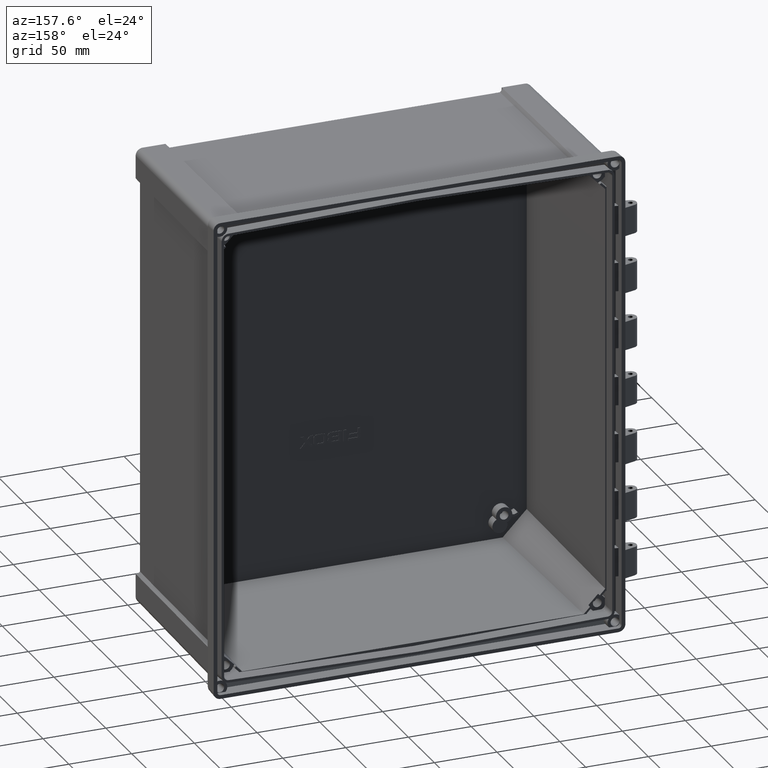
[diagram: clean part render]
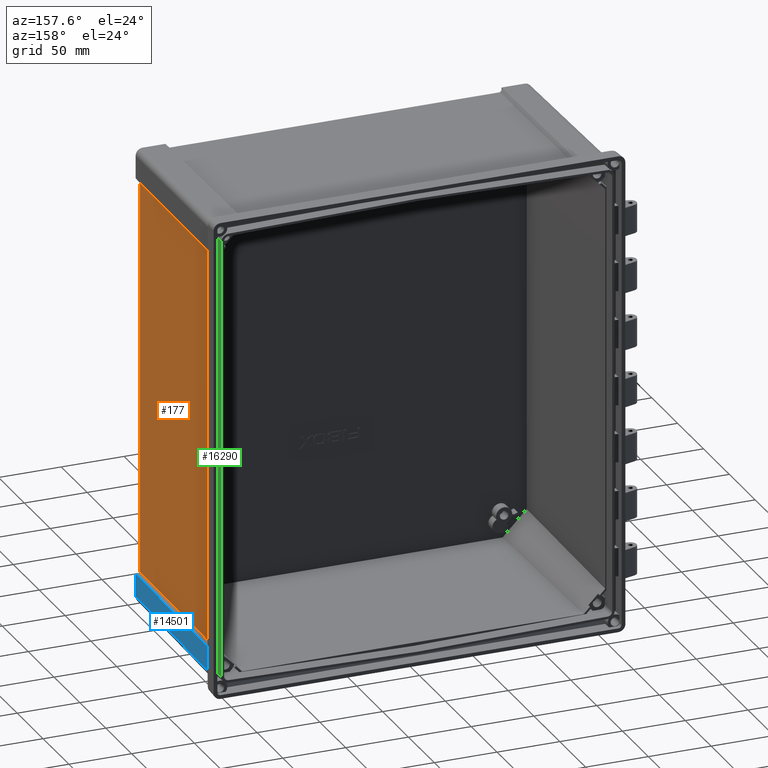
[diagram: same view with three faces highlighted in distinct colors, each labeled with its STEP entity id]
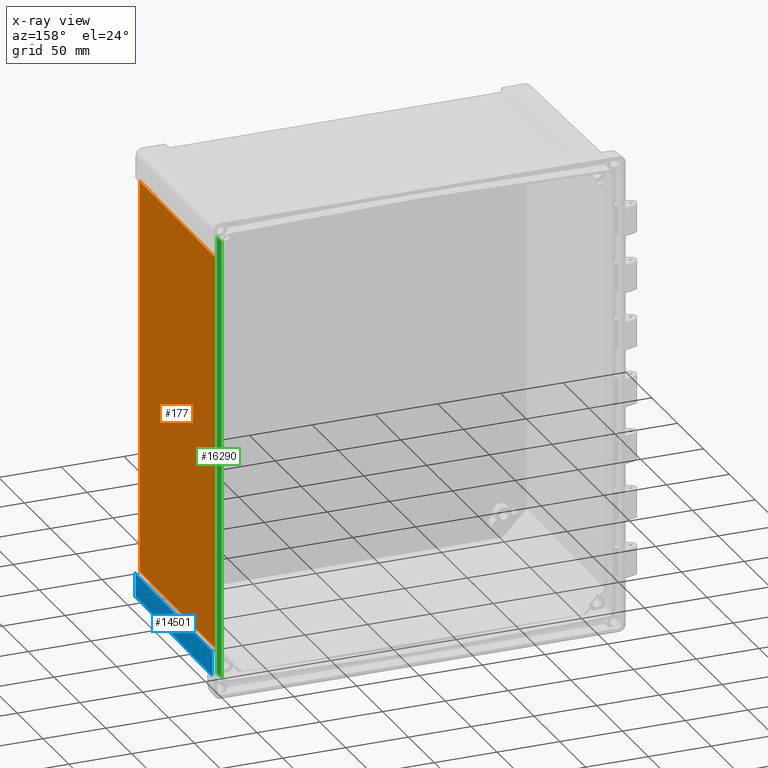
[diagram: x-ray of the same camera — body ghosted, the three highlighted faces saturated]
A machine part, auxiliary view with three faces highlighted in distinct colors.
The next image is the same camera in x-ray (body ghosted, the three faces saturated) — at least one of them is partly hidden behind the body in this view.
Their STEP definitions:

[orange] entity #177 — the highlighted planar face has unit normal (1, -0.0087, -0).
#177 = ADVANCED_FACE ( 'NONE', ( #1636 ), #2775, .T. ) ;
#577 = LINE ( 'NONE', #4968, #10868 ) ;
#586 = AXIS2_PLACEMENT_3D ( 'NONE', #18888, #10669, #5870 ) ;
#1310 = ORIENTED_EDGE ( 'NONE', *, *, #3884, .T. ) ;
#1636 = FACE_OUTER_BOUND ( 'NONE', #16570, .T. ) ;
#2371 = ORIENTED_EDGE ( 'NONE', *, *, #9360, .T. ) ;
#2763 = VECTOR ( 'NONE', #16458, 999.9999999999998900 ) ;
#2775 = PLANE ( 'NONE',  #586 ) ;
#2934 = VECTOR ( 'NONE', #9961, 1000.000000000000000 ) ;
#3884 = EDGE_CURVE ( 'NONE', #4318, #7385, #13097, .T. ) ;
#4167 = VECTOR ( 'NONE', #5694, 999.9999999999998900 ) ;
#4318 = VERTEX_POINT ( 'NONE', #8253 ) ;
#4514 = ORIENTED_EDGE ( 'NONE', *, *, #16239, .T. ) ;
#4968 = CARTESIAN_POINT ( 'NONE',  ( 156.4582163448737300, -15.51465397274029300, -182.5000000000000000 ) ) ;
#5183 = CARTESIAN_POINT ( 'NONE',  ( 4520.027724690820800, 500000.0250526138700, 616.0387640821163600 ) ) ;
#5361 = ORIENTED_EDGE ( 'NONE', *, *, #15102, .F. ) ;
#5694 = DIRECTION ( 'NONE',  ( 0.008726531827788399500, 0.9999615024563482900, -0.0009171954542839643900 ) ) ;
#5870 = DIRECTION ( 'NONE',  ( 0.008726535498377261900, 0.9999619230641712000, 0.0000000000000000000 ) ) ;
#7385 = VERTEX_POINT ( 'NONE', #14695 ) ;
#8253 = CARTESIAN_POINT ( 'NONE',  ( 156.4582163448737900, -15.51465397274028400, 157.4091278776343500 ) ) ;
#9360 = EDGE_CURVE ( 'NONE', #11297, #4318, #577, .T. ) ;
#9456 = CARTESIAN_POINT ( 'NONE',  ( 155.1624043612282800, -164.0000000000000000, -157.2713855089515400 ) ) ;
#9961 = DIRECTION ( 'NONE',  ( 1.529384414621575700E-016, 0.0000000000000000000, 1.000000000000000000 ) ) ;
#10669 = DIRECTION ( 'NONE',  ( 0.9999619230641713100, -0.008726535498377263600, -1.529326180349363200E-016 ) ) ;
#10868 = VECTOR ( 'NONE', #19619, 1000.000000000000000 ) ;
#11297 = VERTEX_POINT ( 'NONE', #20497 ) ;
#12066 = CARTESIAN_POINT ( 'NONE',  ( 4520.027723359377900, 500000.0249000454800, -616.0372169012649700 ) ) ;
#13097 = LINE ( 'NONE', #5183, #2763 ) ;
#13189 = CARTESIAN_POINT ( 'NONE',  ( 155.1624043612282800, -164.0000000000000000, -182.5000000000000000 ) ) ;
#14695 = CARTESIAN_POINT ( 'NONE',  ( 155.1624043612283400, -164.0000000000000000, 157.2729325500451400 ) ) ;
#15102 = EDGE_CURVE ( 'NONE', #15960, #7385, #16529, .T. ) ;
#15960 = VERTEX_POINT ( 'NONE', #9456 ) ;
#16239 = EDGE_CURVE ( 'NONE', #15960, #11297, #17012, .T. ) ;
#16458 = DIRECTION ( 'NONE',  ( -0.008726531827788399500, -0.9999615024563482900, -0.0009171954542835999800 ) ) ;
#16529 = LINE ( 'NONE', #13189, #2934 ) ;
#16570 = EDGE_LOOP ( 'NONE', ( #1310, #5361, #4514, #2371 ) ) ;
#17012 = LINE ( 'NONE', #12066, #4167 ) ;
#18888 = CARTESIAN_POINT ( 'NONE',  ( 156.4582163448737300, -15.51465397274029300, -182.5000000000000000 ) ) ;
#19619 = DIRECTION ( 'NONE',  ( 1.532226623010618200E-016, 3.256848226864016900E-017, 1.000000000000000000 ) ) ;
#20497 = CARTESIAN_POINT ( 'NONE',  ( 156.4582163448737300, -15.51465397274029500, -157.4075808365416000 ) ) ;

[blue] entity #14501 — the highlighted planar face has unit normal (1, -0.0087, -0).
#901 = VECTOR ( 'NONE', #16110, 1000.000000000000000 ) ;
#1118 = VERTEX_POINT ( 'NONE', #3966 ) ;
#2817 = VERTEX_POINT ( 'NONE', #6312 ) ;
#3138 = DIRECTION ( 'NONE',  ( 0.9999619230641713100, -0.008726535498373953800, -5.550903753671456900E-015 ) ) ;
#3825 = CARTESIAN_POINT ( 'NONE',  ( 157.7846253229202200, -166.0000000000000000, -179.3020790585016200 ) ) ;
#3966 = CARTESIAN_POINT ( 'NONE',  ( 157.7846253229202200, -166.0000000000000000, -177.7848347460671600 ) ) ;
#4154 = AXIS2_PLACEMENT_3D ( 'NONE', #14546, #3138, #11384 ) ;
#4770 = LINE ( 'NONE', #5246, #20403 ) ;
#4857 = CARTESIAN_POINT ( 'NONE',  ( 157.7846253229203300, -166.0000000000000000, -159.4892400264092200 ) ) ;
#5246 = CARTESIAN_POINT ( 'NONE',  ( 157.4574272763685200, -203.4931824793186800, -159.4373002503094500 ) ) ;
#5724 = CARTESIAN_POINT ( 'NONE',  ( 157.8020790585018500, -164.0000000000000000, -159.4735246123035200 ) ) ;
#5921 = LINE ( 'NONE', #14236, #15015 ) ;
#6161 = LINE ( 'NONE', #9919, #901 ) ;
#6212 = FACE_OUTER_BOUND ( 'NONE', #19598, .T. ) ;
#6312 = CARTESIAN_POINT ( 'NONE',  ( 159.1027966142823700, -14.95253108361441500, -159.6102355363004800 ) ) ;
#6520 = PLANE ( 'NONE',  #4154 ) ;
#6816 = LINE ( 'NONE', #3825, #16138 ) ;
#6833 = ORIENTED_EDGE ( 'NONE', *, *, #9880, .T. ) ;
#8699 = DIRECTION ( 'NONE',  ( 0.008726531827785086200, 0.9999615024563482900, -0.0009171954542809246100 ) ) ;
#9085 = ORIENTED_EDGE ( 'NONE', *, *, #10259, .F. ) ;
#9880 = EDGE_CURVE ( 'NONE', #12329, #1118, #6816, .T. ) ;
#9919 = CARTESIAN_POINT ( 'NONE',  ( 159.1027966142822000, -14.95253108361445800, -191.8729938033533000 ) ) ;
#10259 = EDGE_CURVE ( 'NONE', #14783, #2817, #4770, .T. ) ;
#10875 = VECTOR ( 'NONE', #17235, 1000.000000000000000 ) ;
#11112 = VERTEX_POINT ( 'NONE', #13888 ) ;
#11384 = DIRECTION ( 'NONE',  ( 0.008726535498373953800, 0.9999619230641713100, 0.0000000000000000000 ) ) ;
#11812 = ORIENTED_EDGE ( 'NONE', *, *, #16523, .F. ) ;
#12329 = VERTEX_POINT ( 'NONE', #4857 ) ;
#13888 = CARTESIAN_POINT ( 'NONE',  ( 159.1027966142822800, -14.95253108361444200, -179.1030060374292000 ) ) ;
#14236 = CARTESIAN_POINT ( 'NONE',  ( 159.1120809855829900, -13.88864750896570800, -179.1122904087299000 ) ) ;
#14482 = ORIENTED_EDGE ( 'NONE', *, *, #15836, .T. ) ;
#14501 = ADVANCED_FACE ( 'NONE', ( #6212 ), #6520, .T. ) ;
#14546 = CARTESIAN_POINT ( 'NONE',  ( 159.1111092271154900, -14.00000000000000200, -191.8729938033533000 ) ) ;
#14783 = VERTEX_POINT ( 'NONE', #5724 ) ;
#15015 = VECTOR ( 'NONE', #18938, 1000.000000000000100 ) ;
#15836 = EDGE_CURVE ( 'NONE', #1118, #11112, #5921, .T. ) ;
#16110 = DIRECTION ( 'NONE',  ( -5.561431316896711000E-015, -1.182118718683531600E-015, -1.000000000000000000 ) ) ;
#16138 = VECTOR ( 'NONE', #19802, 1000.000000000000000 ) ;
#16523 = EDGE_CURVE ( 'NONE', #2817, #11112, #6161, .T. ) ;
#17235 = DIRECTION ( 'NONE',  ( 0.008726266127678031200, 0.9999310562397356600, 0.007857165312980560900 ) ) ;
#18352 = EDGE_CURVE ( 'NONE', #12329, #14783, #18919, .T. ) ;
#18919 = LINE ( 'NONE', #19116, #10875 ) ;
#18938 = DIRECTION ( 'NONE',  ( 0.008726203243944187900, 0.9999238504775704900, -0.008726203243944236400 ) ) ;
#19116 = CARTESIAN_POINT ( 'NONE',  ( 157.8013531687958800, -164.0831787215519200, -159.4741782063304900 ) ) ;
#19598 = EDGE_LOOP ( 'NONE', ( #6833, #14482, #11812, #9085, #19747 ) ) ;
#19747 = ORIENTED_EDGE ( 'NONE', *, *, #18352, .F. ) ;
#19802 = DIRECTION ( 'NONE',  ( -5.824015820661215600E-015, 0.0000000000000000000, -1.000000000000000000 ) ) ;
#20403 = VECTOR ( 'NONE', #8699, 999.9999999999998900 ) ;

[green] entity #16290 — the highlighted planar face has unit normal (0.9994, 0.0349, 0).
#440 = DIRECTION ( 'NONE',  ( 0.03487899055459543100, -0.9988036077738137200, 0.03427548855823894800 ) ) ;
#1762 = LINE ( 'NONE', #9415, #10814 ) ;
#1977 = VERTEX_POINT ( 'NONE', #15657 ) ;
#2107 = DIRECTION ( 'NONE',  ( 1.539166142350817000E-016, 3.271598630569969400E-017, -1.000000000000000000 ) ) ;
#2566 = EDGE_CURVE ( 'NONE', #8535, #1977, #6600, .T. ) ;
#2669 = VECTOR ( 'NONE', #440, 1000.000000000000100 ) ;
#2919 = FACE_OUTER_BOUND ( 'NONE', #9172, .T. ) ;
#4132 = EDGE_CURVE ( 'NONE', #1977, #5841, #1762, .T. ) ;
#4147 = CARTESIAN_POINT ( 'NONE',  ( 156.6309640628198800, -3.000000000000000000, -184.3981870352587300 ) ) ;
#4414 = ORIENTED_EDGE ( 'NONE', *, *, #6034, .T. ) ;
#4883 = CARTESIAN_POINT ( 'NONE',  ( 156.9217411512858000, -11.32676635418047300, 175.8495979075234200 ) ) ;
#5841 = VERTEX_POINT ( 'NONE', #9849 ) ;
#5978 = PLANE ( 'NONE',  #15123 ) ;
#6034 = EDGE_CURVE ( 'NONE', #5841, #13924, #13509, .T. ) ;
#6600 = LINE ( 'NONE', #18529, #10389 ) ;
#6943 = ORIENTED_EDGE ( 'NONE', *, *, #2566, .T. ) ;
#8043 = ORIENTED_EDGE ( 'NONE', *, *, #4132, .T. ) ;
#8535 = VERTEX_POINT ( 'NONE', #12230 ) ;
#8872 = DIRECTION ( 'NONE',  ( -0.03487899055459544500, 0.9988036077738137200, 0.03427548855823894800 ) ) ;
#9172 = EDGE_LOOP ( 'NONE', ( #8043, #4414, #20794, #6943 ) ) ;
#9415 = CARTESIAN_POINT ( 'NONE',  ( 156.6135036780739300, -2.500000000000000000, -186.4334018212029800 ) ) ;
#9849 = CARTESIAN_POINT ( 'NONE',  ( 156.6135036780738700, -2.500000000000000000, 175.5466937862083200 ) ) ;
#10389 = VECTOR ( 'NONE', #8872, 1000.000000000000100 ) ;
#10814 = VECTOR ( 'NONE', #19041, 1000.000000000000000 ) ;
#11831 = CARTESIAN_POINT ( 'NONE',  ( 156.2006314458685100, 9.323113814917489300, 175.1409653736036800 ) ) ;
#12230 = CARTESIAN_POINT ( 'NONE',  ( 156.9217411512858600, -11.32676635418046200, -175.8495979075233900 ) ) ;
#13454 = EDGE_CURVE ( 'NONE', #13924, #8535, #19857, .T. ) ;
#13509 = LINE ( 'NONE', #11831, #2669 ) ;
#13924 = VERTEX_POINT ( 'NONE', #4883 ) ;
#13936 = DIRECTION ( 'NONE',  ( -0.03489949670250104600, 0.9993908270190956500, 0.0000000000000000000 ) ) ;
#15123 = AXIS2_PLACEMENT_3D ( 'NONE', #4147, #20181, #13936 ) ;
#15657 = CARTESIAN_POINT ( 'NONE',  ( 156.6135036780739300, -2.500000000000000000, -175.5466937862084100 ) ) ;
#16290 = ADVANCED_FACE ( 'NONE', ( #2919 ), #5978, .T. ) ;
#16348 = VECTOR ( 'NONE', #2107, 1000.000000000000000 ) ;
#17873 = CARTESIAN_POINT ( 'NONE',  ( 156.9217411512858600, -11.32676635418046200, -184.3981870352587300 ) ) ;
#18529 = CARTESIAN_POINT ( 'NONE',  ( 156.6415254611804900, -3.302438878476315700, -175.5742307157747700 ) ) ;
#19041 = DIRECTION ( 'NONE',  ( -1.550590816515582500E-016, 0.0000000000000000000, 1.000000000000000000 ) ) ;
#19857 = LINE ( 'NONE', #17873, #16348 ) ;
#20181 = DIRECTION ( 'NONE',  ( 0.9993908270190957600, 0.03489949670250105200, 1.549646238485722800E-016 ) ) ;
#20794 = ORIENTED_EDGE ( 'NONE', *, *, #13454, .T. ) ;